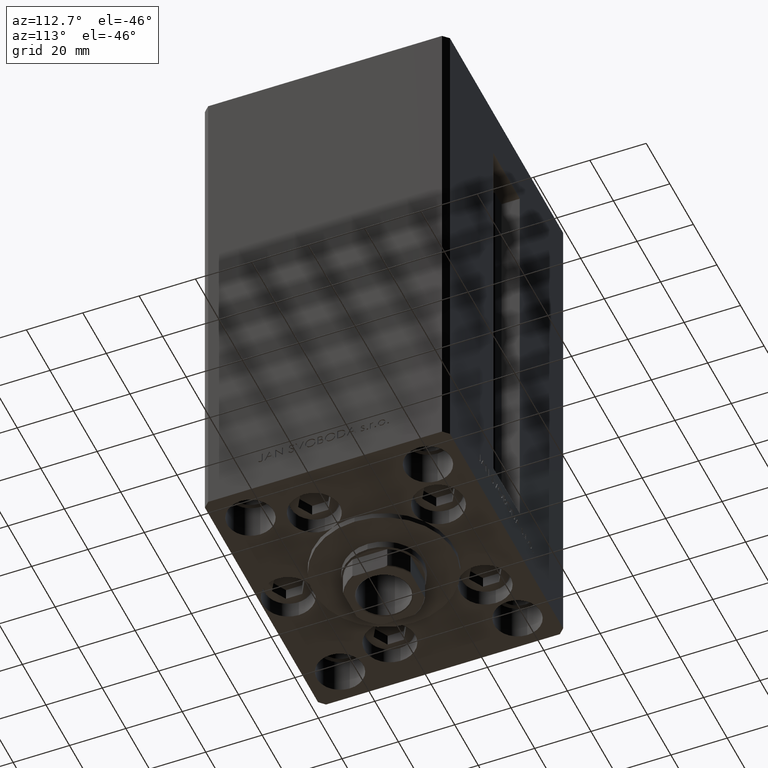
[diagram: clean part render]
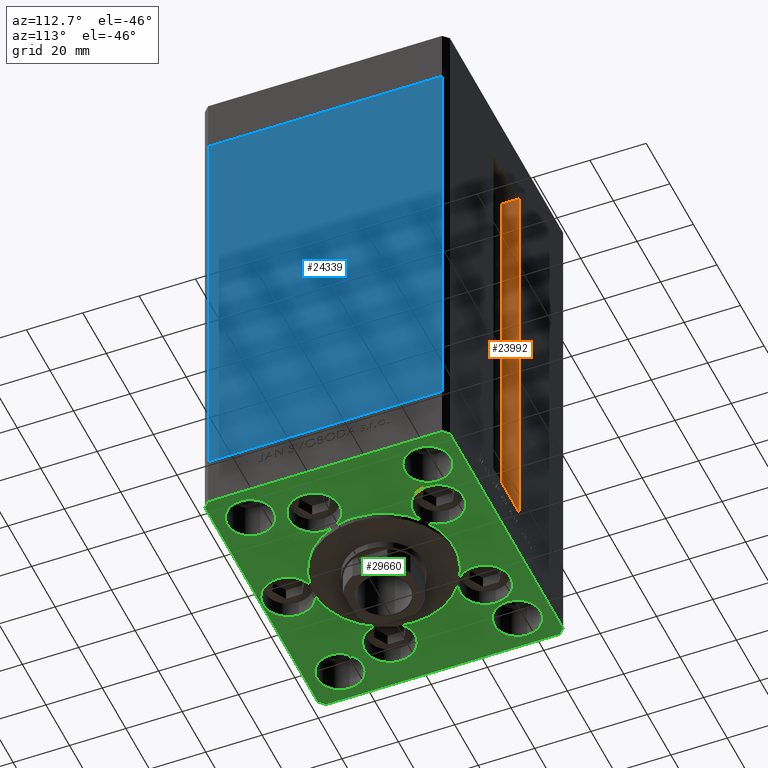
[diagram: same view with three faces highlighted in distinct colors, each labeled with its STEP entity id]
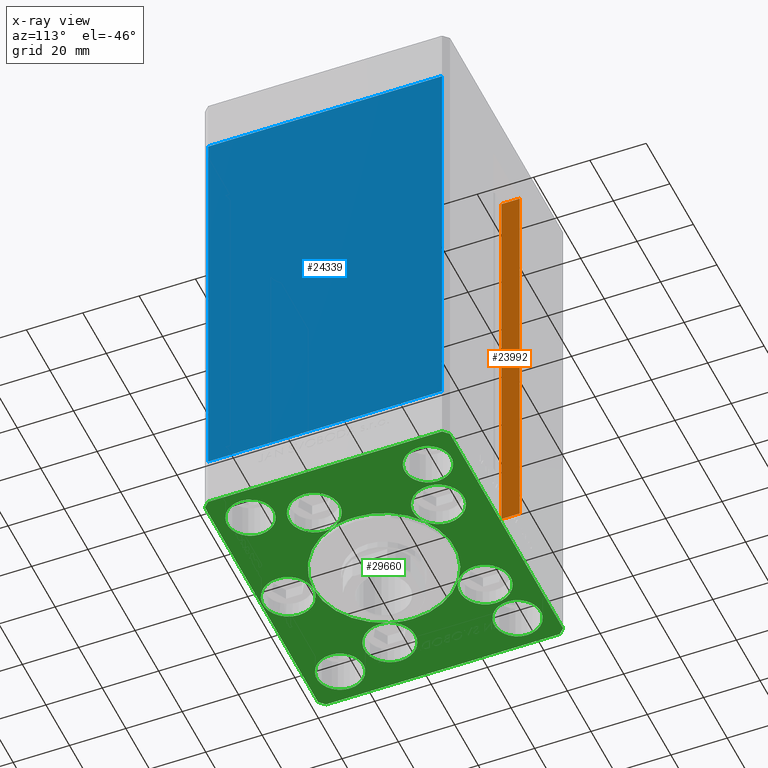
[diagram: x-ray of the same camera — body ghosted, the three highlighted faces saturated]
A machine part, auxiliary view with three faces highlighted in distinct colors.
The next image is the same camera in x-ray (body ghosted, the three faces saturated) — at least one of them is partly hidden behind the body in this view.
Their STEP definitions:

[orange] entity #23992 — the highlighted planar face has unit normal (-1, 0, 0).
#4815 = CARTESIAN_POINT ( 'NONE',  ( -11.24999999999999822, 0.000000000000000000, 148.5000000000000000 ) ) ;
#6419 = EDGE_CURVE ( 'NONE', #46336, #21211, #12008, .T. ) ;
#7380 = CARTESIAN_POINT ( 'NONE',  ( -11.24999999999999822, 36.99999999999999289, 0.000000000000000000 ) ) ;
#10275 = ORIENTED_EDGE ( 'NONE', *, *, #6419, .T. ) ;
#10928 = DIRECTION ( 'NONE',  ( -0.000000000000000000, -0.000000000000000000, 1.000000000000000000 ) ) ;
#11407 = DIRECTION ( 'NONE',  ( 0.000000000000000000, 1.000000000000000000, 0.000000000000000000 ) ) ;
#11491 = CARTESIAN_POINT ( 'NONE',  ( -11.24999999999999822, 43.50000000000000000, 0.000000000000000000 ) ) ;
#11684 = ORIENTED_EDGE ( 'NONE', *, *, #32358, .F. ) ;
#11868 = VECTOR ( 'NONE', #10928, 1000.000000000000000 ) ;
#12008 = LINE ( 'NONE', #11491, #12342 ) ;
#12342 = VECTOR ( 'NONE', #39161, 1000.000000000000000 ) ;
#14443 = CARTESIAN_POINT ( 'NONE',  ( -11.24999999999999822, 43.50000000000000000, 148.5000000000000000 ) ) ;
#15360 = VERTEX_POINT ( 'NONE', #33729 ) ;
#15728 = AXIS2_PLACEMENT_3D ( 'NONE', #16169, #27582, #42818 ) ;
#16169 = CARTESIAN_POINT ( 'NONE',  ( -11.24999999999999822, 36.99999999999999289, 0.000000000000000000 ) ) ;
#21211 = VERTEX_POINT ( 'NONE', #14443 ) ;
#22326 = ORIENTED_EDGE ( 'NONE', *, *, #27423, .F. ) ;
#23380 = LINE ( 'NONE', #7380, #11868 ) ;
#23992 = ADVANCED_FACE ( 'NONE', ( #27078 ), #39514, .F. ) ;
#24103 = LINE ( 'NONE', #4815, #28831 ) ;
#27078 = FACE_OUTER_BOUND ( 'NONE', #41637, .T. ) ;
#27423 = EDGE_CURVE ( 'NONE', #15360, #21211, #24103, .T. ) ;
#27582 = DIRECTION ( 'NONE',  ( -1.000000000000000000, 0.000000000000000000, 0.000000000000000000 ) ) ;
#28831 = VECTOR ( 'NONE', #11407, 1000.000000000000000 ) ;
#29767 = VECTOR ( 'NONE', #32600, 1000.000000000000000 ) ;
#32358 = EDGE_CURVE ( 'NONE', #46336, #34397, #44540, .T. ) ;
#32600 = DIRECTION ( 'NONE',  ( -0.000000000000000000, -1.000000000000000000, -0.000000000000000000 ) ) ;
#33473 = EDGE_CURVE ( 'NONE', #34397, #15360, #23380, .T. ) ;
#33729 = CARTESIAN_POINT ( 'NONE',  ( -11.24999999999999822, 36.99999999999999289, 148.5000000000000000 ) ) ;
#34397 = VERTEX_POINT ( 'NONE', #39167 ) ;
#37164 = CARTESIAN_POINT ( 'NONE',  ( -11.24999999999999822, 36.99999999999999289, 0.000000000000000000 ) ) ;
#39161 = DIRECTION ( 'NONE',  ( -0.000000000000000000, -0.000000000000000000, 1.000000000000000000 ) ) ;
#39167 = CARTESIAN_POINT ( 'NONE',  ( -11.24999999999999822, 36.99999999999999289, 0.000000000000000000 ) ) ;
#39514 = PLANE ( 'NONE',  #15728 ) ;
#40799 = CARTESIAN_POINT ( 'NONE',  ( -11.24999999999999822, 43.50000000000000000, 0.000000000000000000 ) ) ;
#41637 = EDGE_LOOP ( 'NONE', ( #48387, #11684, #10275, #22326 ) ) ;
#42818 = DIRECTION ( 'NONE',  ( 0.000000000000000000, 0.000000000000000000, 1.000000000000000000 ) ) ;
#44540 = LINE ( 'NONE', #37164, #29767 ) ;
#46336 = VERTEX_POINT ( 'NONE', #40799 ) ;
#48387 = ORIENTED_EDGE ( 'NONE', *, *, #33473, .F. ) ;

[blue] entity #24339 — the highlighted planar face has unit normal (1, -0, 0).
#1962 = CARTESIAN_POINT ( 'NONE',  ( 50.00000000000001421, 41.49999999999999289, 148.5000000000000000 ) ) ;
#2101 = DIRECTION ( 'NONE',  ( -0.000000000000000000, -0.000000000000000000, -1.000000000000000000 ) ) ;
#2780 = VERTEX_POINT ( 'NONE', #5425 ) ;
#3929 = EDGE_CURVE ( 'NONE', #2780, #25848, #47812, .T. ) ;
#5364 = CARTESIAN_POINT ( 'NONE',  ( 49.99999999999998579, -41.49999999999999289, 148.5000000000000000 ) ) ;
#5425 = CARTESIAN_POINT ( 'NONE',  ( 50.00000000000001421, 41.49999999999999289, 148.5000000000000000 ) ) ;
#5853 = CARTESIAN_POINT ( 'NONE',  ( 49.99999999999998579, -41.49999999999999289, 148.5000000000000000 ) ) ;
#9445 = VERTEX_POINT ( 'NONE', #29307 ) ;
#9734 = CARTESIAN_POINT ( 'NONE',  ( 50.00000000000001421, 41.49999999999999289, 148.5000000000000000 ) ) ;
#10090 = DIRECTION ( 'NONE',  ( -3.344045254895050973E-16, -1.000000000000000000, 0.000000000000000000 ) ) ;
#13072 = VECTOR ( 'NONE', #2101, 1000.000000000000000 ) ;
#13244 = ORIENTED_EDGE ( 'NONE', *, *, #3929, .F. ) ;
#14581 = CARTESIAN_POINT ( 'NONE',  ( 50.00000000000001421, 41.49999999999999289, 0.000000000000000000 ) ) ;
#15157 = VECTOR ( 'NONE', #20588, 1000.000000000000000 ) ;
#18965 = LINE ( 'NONE', #34437, #43956 ) ;
#20316 = EDGE_CURVE ( 'NONE', #25848, #9445, #18965, .T. ) ;
#20588 = DIRECTION ( 'NONE',  ( -0.000000000000000000, -0.000000000000000000, -1.000000000000000000 ) ) ;
#20930 = PLANE ( 'NONE',  #38383 ) ;
#22726 = EDGE_LOOP ( 'NONE', ( #39014, #13244, #42817, #47010 ) ) ;
#24339 = ADVANCED_FACE ( 'NONE', ( #25223 ), #20930, .T. ) ;
#24395 = LINE ( 'NONE', #5364, #15157 ) ;
#25223 = FACE_OUTER_BOUND ( 'NONE', #22726, .T. ) ;
#25848 = VERTEX_POINT ( 'NONE', #14581 ) ;
#28276 = DIRECTION ( 'NONE',  ( 3.344045254895050480E-16, 1.000000000000000000, 0.000000000000000000 ) ) ;
#29307 = CARTESIAN_POINT ( 'NONE',  ( 49.99999999999998579, -41.49999999999999289, 0.000000000000000000 ) ) ;
#34437 = CARTESIAN_POINT ( 'NONE',  ( 50.00000000000001421, 41.49999999999999289, 0.000000000000000000 ) ) ;
#34805 = EDGE_CURVE ( 'NONE', #2780, #46030, #45114, .T. ) ;
#35677 = EDGE_CURVE ( 'NONE', #46030, #9445, #24395, .T. ) ;
#36216 = VECTOR ( 'NONE', #10090, 1000.000000000000000 ) ;
#36391 = CARTESIAN_POINT ( 'NONE',  ( 50.00000000000001421, 41.49999999999999289, 148.5000000000000000 ) ) ;
#38383 = AXIS2_PLACEMENT_3D ( 'NONE', #36391, #40695, #28276 ) ;
#39014 = ORIENTED_EDGE ( 'NONE', *, *, #20316, .F. ) ;
#40695 = DIRECTION ( 'NONE',  ( 1.000000000000000000, -3.344045254895050480E-16, 0.000000000000000000 ) ) ;
#42817 = ORIENTED_EDGE ( 'NONE', *, *, #34805, .T. ) ;
#43956 = VECTOR ( 'NONE', #45393, 1000.000000000000000 ) ;
#45114 = LINE ( 'NONE', #1962, #36216 ) ;
#45393 = DIRECTION ( 'NONE',  ( -3.344045254895050973E-16, -1.000000000000000000, 0.000000000000000000 ) ) ;
#46030 = VERTEX_POINT ( 'NONE', #5853 ) ;
#47010 = ORIENTED_EDGE ( 'NONE', *, *, #35677, .T. ) ;
#47812 = LINE ( 'NONE', #9734, #13072 ) ;

[green] entity #29660 — the highlighted planar face has unit normal (0, 0, -1).
#75 = CIRCLE ( 'NONE', #30078, 9.000000000000001776 ) ;
#535 = AXIS2_PLACEMENT_3D ( 'NONE', #1904, #47616, #17399 ) ;
#575 = ORIENTED_EDGE ( 'NONE', *, *, #30918, .F. ) ;
#836 = DIRECTION ( 'NONE',  ( 1.000000000000000000, 0.000000000000000000, 0.000000000000000000 ) ) ;
#987 = CARTESIAN_POINT ( 'NONE',  ( -48.00000000000000711, -43.50000000000002842, 0.000000000000000000 ) ) ;
#1056 = VERTEX_POINT ( 'NONE', #19227 ) ;
#1154 = ORIENTED_EDGE ( 'NONE', *, *, #32455, .T. ) ;
#1718 = DIRECTION ( 'NONE',  ( 0.000000000000000000, 0.000000000000000000, 1.000000000000000000 ) ) ;
#1904 = CARTESIAN_POINT ( 'NONE',  ( 0.000000000000000000, 0.000000000000000000, 0.000000000000000000 ) ) ;
#2154 = ORIENTED_EDGE ( 'NONE', *, *, #38752, .F. ) ;
#2157 = CARTESIAN_POINT ( 'NONE',  ( 50.00000000000000000, 41.50000000000000711, 0.000000000000000000 ) ) ;
#2355 = CARTESIAN_POINT ( 'NONE',  ( -50.00000000000000000, -41.50000000000004263, 0.000000000000000000 ) ) ;
#2511 = VERTEX_POINT ( 'NONE', #48232 ) ;
#2579 = AXIS2_PLACEMENT_3D ( 'NONE', #42724, #7713, #836 ) ;
#2601 = CARTESIAN_POINT ( 'NONE',  ( -50.00000000000000711, 41.49999999999999289, 0.000000000000000000 ) ) ;
#2864 = VERTEX_POINT ( 'NONE', #16341 ) ;
#3476 = VERTEX_POINT ( 'NONE', #25834 ) ;
#3575 = DIRECTION ( 'NONE',  ( 0.7071067811865487940, -0.7071067811865463515, 0.000000000000000000 ) ) ;
#3583 = DIRECTION ( 'NONE',  ( 0.000000000000000000, 0.000000000000000000, 1.000000000000000000 ) ) ;
#3749 = VECTOR ( 'NONE', #33130, 999.9999999999998863 ) ;
#3804 = EDGE_CURVE ( 'NONE', #14746, #22175, #75, .T. ) ;
#3847 = DIRECTION ( 'NONE',  ( 1.000000000000000000, 0.000000000000000000, 0.000000000000000000 ) ) ;
#3911 = CARTESIAN_POINT ( 'NONE',  ( 32.05550741379015989, -11.33333333333332860, 0.000000000000000000 ) ) ;
#3977 = DIRECTION ( 'NONE',  ( 1.000000000000000000, 0.000000000000000000, 0.000000000000000000 ) ) ;
#4087 = LINE ( 'NONE', #38348, #8470 ) ;
#4153 = DIRECTION ( 'NONE',  ( 1.000000000000000000, 0.000000000000000000, 0.000000000000000000 ) ) ;
#4366 = CIRCLE ( 'NONE', #28672, 8.250000000000000000 ) ;
#4677 = CIRCLE ( 'NONE', #12746, 9.000000000000001776 ) ;
#4760 = CARTESIAN_POINT ( 'NONE',  ( -29.75000000000000000, 31.50000000000000000, 0.000000000000000000 ) ) ;
#4929 = LINE ( 'NONE', #37800, #43242 ) ;
#5018 = CARTESIAN_POINT ( 'NONE',  ( -25.00000000000000000, -6.938893903907228378E-15, 0.000000000000000000 ) ) ;
#5252 = CIRCLE ( 'NONE', #6869, 25.00000000000000000 ) ;
#5396 = VERTEX_POINT ( 'NONE', #33264 ) ;
#5492 = PLANE ( 'NONE',  #535 ) ;
#5584 = AXIS2_PLACEMENT_3D ( 'NONE', #9567, #12619, #20235 ) ;
#5599 = DIRECTION ( 'NONE',  ( 1.000000000000000000, 0.000000000000000000, 0.000000000000000000 ) ) ;
#5743 = FACE_BOUND ( 'NONE', #38206, .T. ) ;
#5870 = DIRECTION ( 'NONE',  ( 1.000000000000000000, 0.000000000000000000, 0.000000000000000000 ) ) ;
#5912 = ORIENTED_EDGE ( 'NONE', *, *, #7919, .F. ) ;
#6386 = AXIS2_PLACEMENT_3D ( 'NONE', #31218, #46701, #35522 ) ;
#6537 = ORIENTED_EDGE ( 'NONE', *, *, #19209, .F. ) ;
#6553 = DIRECTION ( 'NONE',  ( 8.360113137237620037E-17, -1.000000000000000000, 0.000000000000000000 ) ) ;
#6559 = AXIS2_PLACEMENT_3D ( 'NONE', #10981, #26216, #30772 ) ;
#6702 = ORIENTED_EDGE ( 'NONE', *, *, #40043, .F. ) ;
#6709 = LINE ( 'NONE', #37899, #40322 ) ;
#6833 = CIRCLE ( 'NONE', #30323, 8.999999999999998224 ) ;
#6869 = AXIS2_PLACEMENT_3D ( 'NONE', #50108, #16029, #5870 ) ;
#6964 = CARTESIAN_POINT ( 'NONE',  ( 0.000000000000000000, -34.00000000000000000, 0.000000000000000000 ) ) ;
#7039 = CARTESIAN_POINT ( 'NONE',  ( -32.05550741379015989, -11.33333333333332860, 0.000000000000000000 ) ) ;
#7288 = LINE ( 'NONE', #21787, #46837 ) ;
#7672 = CARTESIAN_POINT ( 'NONE',  ( 38.00000000000000711, -31.50000000000000711, 0.000000000000000000 ) ) ;
#7673 = CARTESIAN_POINT ( 'NONE',  ( 29.75000000000001066, -31.50000000000000711, 0.000000000000000000 ) ) ;
#7691 = DIRECTION ( 'NONE',  ( 0.000000000000000000, 0.000000000000000000, 1.000000000000000000 ) ) ;
#7713 = DIRECTION ( 'NONE',  ( 0.000000000000000000, 0.000000000000000000, 1.000000000000000000 ) ) ;
#7715 = DIRECTION ( 'NONE',  ( 0.000000000000000000, 0.000000000000000000, 1.000000000000000000 ) ) ;
#7746 = AXIS2_PLACEMENT_3D ( 'NONE', #11852, #46631, #27834 ) ;
#7831 = CARTESIAN_POINT ( 'NONE',  ( 0.000000000000000000, -34.00000000000000000, 0.000000000000000000 ) ) ;
#7899 = AXIS2_PLACEMENT_3D ( 'NONE', #6964, #7715, #34341 ) ;
#7919 = EDGE_CURVE ( 'NONE', #20678, #37092, #28573, .T. ) ;
#8210 = CARTESIAN_POINT ( 'NONE',  ( 0.000000000000000000, -6.938893903907228378E-15, 0.000000000000000000 ) ) ;
#8341 = VERTEX_POINT ( 'NONE', #28860 ) ;
#8470 = VECTOR ( 'NONE', #3575, 1000.000000000000000 ) ;
#8580 = DIRECTION ( 'NONE',  ( 0.000000000000000000, 0.000000000000000000, 1.000000000000000000 ) ) ;
#8616 = CARTESIAN_POINT ( 'NONE',  ( -48.00000000000000000, 43.49999999999997158, 0.000000000000000000 ) ) ;
#8671 = CIRCLE ( 'NONE', #37016, 25.00000000000000000 ) ;
#8682 = CARTESIAN_POINT ( 'NONE',  ( 9.000000000000000000, -34.00000000000000000, 0.000000000000000000 ) ) ;
#8940 = VERTEX_POINT ( 'NONE', #39049 ) ;
#9442 = EDGE_CURVE ( 'NONE', #25993, #19058, #22839, .T. ) ;
#9510 = CARTESIAN_POINT ( 'NONE',  ( 28.82068048781374969, 27.62499999999998934, 0.000000000000000000 ) ) ;
#9531 = AXIS2_PLACEMENT_3D ( 'NONE', #7831, #26847, #27104 ) ;
#9567 = CARTESIAN_POINT ( 'NONE',  ( -38.00000000000000711, -31.50000000000000711, 0.000000000000000000 ) ) ;
#9665 = EDGE_CURVE ( 'NONE', #8341, #16570, #44737, .T. ) ;
#9685 = ORIENTED_EDGE ( 'NONE', *, *, #12882, .T. ) ;
#9778 = CARTESIAN_POINT ( 'NONE',  ( 38.00000000000000000, 31.50000000000000000, 0.000000000000000000 ) ) ;
#10596 = CIRCLE ( 'NONE', #6559, 8.999999999999998224 ) ;
#10731 = AXIS2_PLACEMENT_3D ( 'NONE', #26985, #11768, #4153 ) ;
#10751 = ORIENTED_EDGE ( 'NONE', *, *, #34547, .F. ) ;
#10981 = CARTESIAN_POINT ( 'NONE',  ( 19.82068048781374969, 27.62499999999998934, 0.000000000000000000 ) ) ;
#10990 = DIRECTION ( 'NONE',  ( 0.7071067811865474617, 0.7071067811865474617, 0.000000000000000000 ) ) ;
#11024 = DIRECTION ( 'NONE',  ( 1.000000000000000000, 0.000000000000000000, 0.000000000000000000 ) ) ;
#11099 = ORIENTED_EDGE ( 'NONE', *, *, #34727, .F. ) ;
#11147 = CARTESIAN_POINT ( 'NONE',  ( -9.000000000000000000, -34.00000000000000000, 0.000000000000000000 ) ) ;
#11471 = DIRECTION ( 'NONE',  ( 0.000000000000000000, 0.000000000000000000, 1.000000000000000000 ) ) ;
#11643 = CIRCLE ( 'NONE', #31093, 25.00000000000000000 ) ;
#11768 = DIRECTION ( 'NONE',  ( 0.000000000000000000, 0.000000000000000000, 1.000000000000000000 ) ) ;
#11778 = DIRECTION ( 'NONE',  ( 0.000000000000000000, 0.000000000000000000, 1.000000000000000000 ) ) ;
#11804 = CARTESIAN_POINT ( 'NONE',  ( -14.57402977045128978, 20.31249999999999289, 0.000000000000000000 ) ) ;
#11852 = CARTESIAN_POINT ( 'NONE',  ( 19.82068048781374969, 27.62499999999998934, 0.000000000000000000 ) ) ;
#11853 = ORIENTED_EDGE ( 'NONE', *, *, #9442, .F. ) ;
#12147 = CARTESIAN_POINT ( 'NONE',  ( 0.000000000000000000, -6.938893903907228378E-15, 0.000000000000000000 ) ) ;
#12377 = DIRECTION ( 'NONE',  ( 1.000000000000000000, 0.000000000000000000, 0.000000000000000000 ) ) ;
#12398 = DIRECTION ( 'NONE',  ( 1.000000000000000000, 0.000000000000000000, 0.000000000000000000 ) ) ;
#12428 = VERTEX_POINT ( 'NONE', #30619 ) ;
#12480 = DIRECTION ( 'NONE',  ( 0.000000000000000000, 0.000000000000000000, 1.000000000000000000 ) ) ;
#12619 = DIRECTION ( 'NONE',  ( 0.000000000000000000, 0.000000000000000000, 1.000000000000000000 ) ) ;
#12641 = ORIENTED_EDGE ( 'NONE', *, *, #15089, .T. ) ;
#12679 = CIRCLE ( 'NONE', #41049, 9.000000000000001776 ) ;
#12718 = CIRCLE ( 'NONE', #19183, 8.250000000000000000 ) ;
#12743 = VECTOR ( 'NONE', #47738, 1000.000000000000000 ) ;
#12746 = AXIS2_PLACEMENT_3D ( 'NONE', #40035, #8580, #12377 ) ;
#12882 = EDGE_CURVE ( 'NONE', #34996, #19963, #4929, .T. ) ;
#13059 = VERTEX_POINT ( 'NONE', #8616 ) ;
#13429 = LINE ( 'NONE', #987, #28144 ) ;
#13678 = EDGE_CURVE ( 'NONE', #3476, #2511, #11643, .T. ) ;
#13838 = DIRECTION ( 'NONE',  ( 1.000000000000000000, 0.000000000000000000, 0.000000000000000000 ) ) ;
#13865 = ORIENTED_EDGE ( 'NONE', *, *, #37674, .F. ) ;
#14414 = EDGE_CURVE ( 'NONE', #39040, #21359, #4366, .T. ) ;
#14709 = DIRECTION ( 'NONE',  ( 0.000000000000000000, 1.000000000000000000, 0.000000000000000000 ) ) ;
#14746 = VERTEX_POINT ( 'NONE', #22933 ) ;
#14748 = CARTESIAN_POINT ( 'NONE',  ( -38.00000000000000000, 31.50000000000000000, 0.000000000000000000 ) ) ;
#15026 = EDGE_CURVE ( 'NONE', #26944, #2511, #6833, .T. ) ;
#15043 = CARTESIAN_POINT ( 'NONE',  ( 46.25000000000000000, -31.50000000000000711, 0.000000000000000000 ) ) ;
#15089 = EDGE_CURVE ( 'NONE', #18042, #1056, #4087, .T. ) ;
#15780 = AXIS2_PLACEMENT_3D ( 'NONE', #39308, #1718, #12398 ) ;
#15791 = EDGE_CURVE ( 'NONE', #12428, #5396, #37647, .T. ) ;
#16029 = DIRECTION ( 'NONE',  ( 0.000000000000000000, 0.000000000000000000, 1.000000000000000000 ) ) ;
#16099 = DIRECTION ( 'NONE',  ( 1.000000000000000000, 0.000000000000000000, 0.000000000000000000 ) ) ;
#16222 = CARTESIAN_POINT ( 'NONE',  ( -23.05550741379015633, -11.33333333333332860, 0.000000000000000000 ) ) ;
#16238 = EDGE_CURVE ( 'NONE', #2511, #20678, #5252, .T. ) ;
#16264 = DIRECTION ( 'NONE',  ( 0.000000000000000000, 0.000000000000000000, 1.000000000000000000 ) ) ;
#16341 = CARTESIAN_POINT ( 'NONE',  ( 48.00000000000000711, -43.49999999999992184, 0.000000000000000000 ) ) ;
#16524 = CARTESIAN_POINT ( 'NONE',  ( -48.00000000000000000, 43.49999999999997158, 0.000000000000000000 ) ) ;
#16570 = VERTEX_POINT ( 'NONE', #16222 ) ;
#16628 = VERTEX_POINT ( 'NONE', #46331 ) ;
#16669 = CIRCLE ( 'NONE', #7746, 8.999999999999998224 ) ;
#16946 = CARTESIAN_POINT ( 'NONE',  ( 47.99999999999999289, 43.50000000000000000, 0.000000000000000000 ) ) ;
#17399 = DIRECTION ( 'NONE',  ( 1.000000000000000000, 0.000000000000000000, 0.000000000000000000 ) ) ;
#17562 = CIRCLE ( 'NONE', #20839, 25.00000000000000000 ) ;
#17930 = DIRECTION ( 'NONE',  ( 0.000000000000000000, 0.000000000000000000, 1.000000000000000000 ) ) ;
#18042 = VERTEX_POINT ( 'NONE', #2355 ) ;
#18143 = EDGE_CURVE ( 'NONE', #22175, #29215, #35297, .T. ) ;
#18304 = DIRECTION ( 'NONE',  ( 1.000000000000000000, 0.000000000000000000, 0.000000000000000000 ) ) ;
#18495 = AXIS2_PLACEMENT_3D ( 'NONE', #23275, #30880, #3977 ) ;
#18804 = AXIS2_PLACEMENT_3D ( 'NONE', #9778, #25260, #13838 ) ;
#18944 = DIRECTION ( 'NONE',  ( 0.000000000000000000, 0.000000000000000000, 1.000000000000000000 ) ) ;
#19058 = VERTEX_POINT ( 'NONE', #34807 ) ;
#19093 = ORIENTED_EDGE ( 'NONE', *, *, #15026, .F. ) ;
#19183 = AXIS2_PLACEMENT_3D ( 'NONE', #40772, #29846, #37214 ) ;
#19209 = EDGE_CURVE ( 'NONE', #25494, #21983, #41940, .T. ) ;
#19227 = CARTESIAN_POINT ( 'NONE',  ( -48.00000000000000711, -43.50000000000002842, 0.000000000000000000 ) ) ;
#19346 = DIRECTION ( 'NONE',  ( 1.000000000000000000, 0.000000000000000000, 0.000000000000000000 ) ) ;
#19363 = AXIS2_PLACEMENT_3D ( 'NONE', #45583, #17930, #45830 ) ;
#19445 = EDGE_CURVE ( 'NONE', #1056, #2864, #13429, .T. ) ;
#19904 = AXIS2_PLACEMENT_3D ( 'NONE', #46492, #12480, #20095 ) ;
#19963 = VERTEX_POINT ( 'NONE', #36644 ) ;
#19978 = ORIENTED_EDGE ( 'NONE', *, *, #32706, .F. ) ;
#20095 = DIRECTION ( 'NONE',  ( 1.000000000000000000, 0.000000000000000000, 0.000000000000000000 ) ) ;
#20168 = CIRCLE ( 'NONE', #5584, 8.250000000000000000 ) ;
#20235 = DIRECTION ( 'NONE',  ( 1.000000000000000000, 0.000000000000000000, 0.000000000000000000 ) ) ;
#20250 = LINE ( 'NONE', #16946, #49543 ) ;
#20263 = DIRECTION ( 'NONE',  ( 1.000000000000000000, 0.000000000000000000, 0.000000000000000000 ) ) ;
#20678 = VERTEX_POINT ( 'NONE', #11804 ) ;
#20706 = CARTESIAN_POINT ( 'NONE',  ( 50.00000000000000000, -41.49999999999992895, 0.000000000000000000 ) ) ;
#20839 = AXIS2_PLACEMENT_3D ( 'NONE', #12147, #28624, #20263 ) ;
#21359 = VERTEX_POINT ( 'NONE', #29421 ) ;
#21756 = ORIENTED_EDGE ( 'NONE', *, *, #50186, .F. ) ;
#21787 = CARTESIAN_POINT ( 'NONE',  ( -50.00000000000000711, 41.49999999999999289, 0.000000000000000000 ) ) ;
#21897 = DIRECTION ( 'NONE',  ( 1.000000000000000000, 0.000000000000000000, 0.000000000000000000 ) ) ;
#21907 = CARTESIAN_POINT ( 'NONE',  ( 10.82068048781375147, 27.62499999999998934, 0.000000000000000000 ) ) ;
#21983 = VERTEX_POINT ( 'NONE', #38857 ) ;
#22175 = VERTEX_POINT ( 'NONE', #33236 ) ;
#22263 = ORIENTED_EDGE ( 'NONE', *, *, #31506, .F. ) ;
#22839 = CIRCLE ( 'NONE', #18804, 8.250000000000000000 ) ;
#22933 = CARTESIAN_POINT ( 'NONE',  ( 41.05550741379015989, -11.33333333333332860, 0.000000000000000000 ) ) ;
#23275 = CARTESIAN_POINT ( 'NONE',  ( 38.00000000000000711, -31.50000000000000711, 0.000000000000000000 ) ) ;
#23517 = ORIENTED_EDGE ( 'NONE', *, *, #14414, .F. ) ;
#23682 = DIRECTION ( 'NONE',  ( 0.000000000000000000, 0.000000000000000000, 1.000000000000000000 ) ) ;
#24168 = CIRCLE ( 'NONE', #46876, 8.249999999999992895 ) ;
#24238 = DIRECTION ( 'NONE',  ( 1.000000000000000000, 0.000000000000000000, 0.000000000000000000 ) ) ;
#24488 = ORIENTED_EDGE ( 'NONE', *, *, #19445, .T. ) ;
#24566 = DIRECTION ( 'NONE',  ( -1.000000000000000000, -2.891205793294678326E-16, 0.000000000000000000 ) ) ;
#24741 = CARTESIAN_POINT ( 'NONE',  ( -19.82068048781374969, 27.62499999999998934, 0.000000000000000000 ) ) ;
#25260 = DIRECTION ( 'NONE',  ( 0.000000000000000000, 0.000000000000000000, 1.000000000000000000 ) ) ;
#25494 = VERTEX_POINT ( 'NONE', #32251 ) ;
#25834 = CARTESIAN_POINT ( 'NONE',  ( 25.00000000000000000, -3.877276906038844941E-15, 0.000000000000000000 ) ) ;
#25993 = VERTEX_POINT ( 'NONE', #36876 ) ;
#26216 = DIRECTION ( 'NONE',  ( 0.000000000000000000, 0.000000000000000000, 1.000000000000000000 ) ) ;
#26278 = VERTEX_POINT ( 'NONE', #11147 ) ;
#26847 = DIRECTION ( 'NONE',  ( 0.000000000000000000, 0.000000000000000000, 1.000000000000000000 ) ) ;
#26944 = VERTEX_POINT ( 'NONE', #21907 ) ;
#26985 = CARTESIAN_POINT ( 'NONE',  ( -19.82068048781374969, 27.62499999999998934, 0.000000000000000000 ) ) ;
#27096 = VERTEX_POINT ( 'NONE', #8682 ) ;
#27104 = DIRECTION ( 'NONE',  ( 1.000000000000000000, 0.000000000000000000, 0.000000000000000000 ) ) ;
#27295 = ORIENTED_EDGE ( 'NONE', *, *, #27654, .F. ) ;
#27404 = ORIENTED_EDGE ( 'NONE', *, *, #44690, .F. ) ;
#27654 = EDGE_CURVE ( 'NONE', #50069, #26944, #16669, .T. ) ;
#27834 = DIRECTION ( 'NONE',  ( 1.000000000000000000, 0.000000000000000000, 0.000000000000000000 ) ) ;
#28144 = VECTOR ( 'NONE', #44392, 1000.000000000000000 ) ;
#28313 = FACE_BOUND ( 'NONE', #49694, .T. ) ;
#28573 = CIRCLE ( 'NONE', #10731, 9.000000000000000000 ) ;
#28624 = DIRECTION ( 'NONE',  ( 0.000000000000000000, 0.000000000000000000, 1.000000000000000000 ) ) ;
#28672 = AXIS2_PLACEMENT_3D ( 'NONE', #35791, #16264, #5599 ) ;
#28860 = CARTESIAN_POINT ( 'NONE',  ( -41.05550741379015989, -11.33333333333332682, 0.000000000000000000 ) ) ;
#29215 = VERTEX_POINT ( 'NONE', #30171 ) ;
#29217 = ORIENTED_EDGE ( 'NONE', *, *, #35216, .F. ) ;
#29421 = CARTESIAN_POINT ( 'NONE',  ( -46.25000000000000000, 31.50000000000000000, 0.000000000000000000 ) ) ;
#29660 = ADVANCED_FACE ( 'NONE', ( #44064, #5743, #32124, #28313, #44560, #36682 ), #5492, .T. ) ;
#29665 = EDGE_CURVE ( 'NONE', #19963, #8940, #40738, .T. ) ;
#29728 = AXIS2_PLACEMENT_3D ( 'NONE', #14748, #45472, #18304 ) ;
#29846 = DIRECTION ( 'NONE',  ( 0.000000000000000000, 0.000000000000000000, 1.000000000000000000 ) ) ;
#30078 = AXIS2_PLACEMENT_3D ( 'NONE', #3911, #11778, #16099 ) ;
#30126 = ORIENTED_EDGE ( 'NONE', *, *, #15791, .F. ) ;
#30171 = CARTESIAN_POINT ( 'NONE',  ( 23.05550741379015633, -11.33333333333332682, 0.000000000000000000 ) ) ;
#30314 = CARTESIAN_POINT ( 'NONE',  ( 0.000000000000000000, -6.938893903907228378E-15, 0.000000000000000000 ) ) ;
#30323 = AXIS2_PLACEMENT_3D ( 'NONE', #30735, #30988, #39113 ) ;
#30442 = EDGE_CURVE ( 'NONE', #12428, #8341, #12679, .T. ) ;
#30573 = CIRCLE ( 'NONE', #41140, 25.00000000000000000 ) ;
#30619 = CARTESIAN_POINT ( 'NONE',  ( -23.57022603955158502, -8.333333333333332149, 0.000000000000000000 ) ) ;
#30735 = CARTESIAN_POINT ( 'NONE',  ( 19.82068048781374969, 27.62499999999998934, 0.000000000000000000 ) ) ;
#30762 = CARTESIAN_POINT ( 'NONE',  ( 0.000000000000000000, -6.938893903907228378E-15, 0.000000000000000000 ) ) ;
#30772 = DIRECTION ( 'NONE',  ( 1.000000000000000000, 0.000000000000000000, 0.000000000000000000 ) ) ;
#30880 = DIRECTION ( 'NONE',  ( 0.000000000000000000, 0.000000000000000000, 1.000000000000000000 ) ) ;
#30918 = EDGE_CURVE ( 'NONE', #20678, #48843, #8671, .T. ) ;
#30988 = DIRECTION ( 'NONE',  ( 0.000000000000000000, 0.000000000000000000, 1.000000000000000000 ) ) ;
#31093 = AXIS2_PLACEMENT_3D ( 'NONE', #30314, #45808, #11024 ) ;
#31218 = CARTESIAN_POINT ( 'NONE',  ( -19.82068048781374969, 27.62499999999998934, 0.000000000000000000 ) ) ;
#31362 = ORIENTED_EDGE ( 'NONE', *, *, #36309, .T. ) ;
#31506 = EDGE_CURVE ( 'NONE', #19058, #25993, #12718, .T. ) ;
#32124 = FACE_BOUND ( 'NONE', #43012, .T. ) ;
#32134 = EDGE_CURVE ( 'NONE', #29215, #14746, #4677, .T. ) ;
#32205 = CIRCLE ( 'NONE', #37868, 25.00000000000000000 ) ;
#32223 = AXIS2_PLACEMENT_3D ( 'NONE', #46013, #7691, #38390 ) ;
#32250 = LINE ( 'NONE', #16524, #12743 ) ;
#32251 = CARTESIAN_POINT ( 'NONE',  ( -46.25000000000000711, -31.50000000000000711, 0.000000000000000000 ) ) ;
#32267 = DIRECTION ( 'NONE',  ( 1.000000000000000000, 0.000000000000000000, 0.000000000000000000 ) ) ;
#32343 = DIRECTION ( 'NONE',  ( 0.000000000000000000, 0.000000000000000000, 1.000000000000000000 ) ) ;
#32455 = EDGE_CURVE ( 'NONE', #2864, #34996, #6709, .T. ) ;
#32706 = EDGE_CURVE ( 'NONE', #5396, #26278, #45186, .T. ) ;
#33007 = CARTESIAN_POINT ( 'NONE',  ( -10.82068048781375147, 27.62499999999998934, 0.000000000000000000 ) ) ;
#33033 = ORIENTED_EDGE ( 'NONE', *, *, #29665, .T. ) ;
#33130 = DIRECTION ( 'NONE',  ( -0.7071067811865512365, 0.7071067811865439090, 0.000000000000000000 ) ) ;
#33236 = CARTESIAN_POINT ( 'NONE',  ( 23.57022603955158502, -8.333333333333332149, 0.000000000000000000 ) ) ;
#33264 = CARTESIAN_POINT ( 'NONE',  ( 0.000000000000000000, -25.00000000000000000, 0.000000000000000000 ) ) ;
#33458 = EDGE_LOOP ( 'NONE', ( #39893, #19093, #27295, #27404, #39526, #11099, #45098, #35765, #33910, #41398, #21756, #29217, #19978, #30126, #6702, #39993, #38901, #45820, #575, #36413, #2154, #5912 ) ) ;
#33910 = ORIENTED_EDGE ( 'NONE', *, *, #18143, .F. ) ;
#34341 = DIRECTION ( 'NONE',  ( 1.000000000000000000, 0.000000000000000000, 0.000000000000000000 ) ) ;
#34547 = EDGE_CURVE ( 'NONE', #21359, #39040, #43509, .T. ) ;
#34558 = CIRCLE ( 'NONE', #7899, 9.000000000000000000 ) ;
#34625 = CIRCLE ( 'NONE', #32223, 9.000000000000000000 ) ;
#34727 = EDGE_CURVE ( 'NONE', #22175, #3476, #17562, .T. ) ;
#34807 = CARTESIAN_POINT ( 'NONE',  ( 46.25000000000000000, 31.50000000000000000, 0.000000000000000000 ) ) ;
#34996 = VERTEX_POINT ( 'NONE', #20706 ) ;
#35216 = EDGE_CURVE ( 'NONE', #26278, #27096, #34558, .T. ) ;
#35297 = CIRCLE ( 'NONE', #19904, 9.000000000000001776 ) ;
#35442 = EDGE_CURVE ( 'NONE', #5396, #22175, #32205, .T. ) ;
#35522 = DIRECTION ( 'NONE',  ( 1.000000000000000000, 0.000000000000000000, 0.000000000000000000 ) ) ;
#35765 = ORIENTED_EDGE ( 'NONE', *, *, #32134, .F. ) ;
#35791 = CARTESIAN_POINT ( 'NONE',  ( -38.00000000000000000, 31.50000000000000000, 0.000000000000000000 ) ) ;
#35920 = EDGE_LOOP ( 'NONE', ( #12641, #24488, #1154, #9685, #33033, #48515, #31362, #39899 ) ) ;
#36309 = EDGE_CURVE ( 'NONE', #13059, #42941, #32250, .T. ) ;
#36413 = ORIENTED_EDGE ( 'NONE', *, *, #39451, .F. ) ;
#36644 = CARTESIAN_POINT ( 'NONE',  ( 50.00000000000000000, 41.50000000000000711, 0.000000000000000000 ) ) ;
#36682 = FACE_OUTER_BOUND ( 'NONE', #35920, .T. ) ;
#36876 = CARTESIAN_POINT ( 'NONE',  ( 29.74999999999999645, 31.50000000000000000, 0.000000000000000000 ) ) ;
#37016 = AXIS2_PLACEMENT_3D ( 'NONE', #30762, #11471, #19346 ) ;
#37092 = VERTEX_POINT ( 'NONE', #33007 ) ;
#37214 = DIRECTION ( 'NONE',  ( 1.000000000000000000, 0.000000000000000000, 0.000000000000000000 ) ) ;
#37508 = EDGE_CURVE ( 'NONE', #42941, #18042, #7288, .T. ) ;
#37647 = CIRCLE ( 'NONE', #15780, 25.00000000000000000 ) ;
#37674 = EDGE_CURVE ( 'NONE', #44763, #43006, #46032, .T. ) ;
#37800 = CARTESIAN_POINT ( 'NONE',  ( 50.00000000000000000, -41.49999999999992895, 0.000000000000000000 ) ) ;
#37868 = AXIS2_PLACEMENT_3D ( 'NONE', #41671, #3583, #21897 ) ;
#37899 = CARTESIAN_POINT ( 'NONE',  ( 48.00000000000000711, -43.49999999999992184, 0.000000000000000000 ) ) ;
#37988 = CIRCLE ( 'NONE', #41217, 9.000000000000000000 ) ;
#38067 = EDGE_CURVE ( 'NONE', #43006, #44763, #24168, .T. ) ;
#38206 = EDGE_LOOP ( 'NONE', ( #22263, #11853 ) ) ;
#38348 = CARTESIAN_POINT ( 'NONE',  ( -50.00000000000000000, -41.50000000000004263, 0.000000000000000000 ) ) ;
#38390 = DIRECTION ( 'NONE',  ( 1.000000000000000000, 0.000000000000000000, 0.000000000000000000 ) ) ;
#38621 = DIRECTION ( 'NONE',  ( 0.000000000000000000, 0.000000000000000000, 1.000000000000000000 ) ) ;
#38752 = EDGE_CURVE ( 'NONE', #37092, #16628, #38754, .T. ) ;
#38754 = CIRCLE ( 'NONE', #6386, 9.000000000000000000 ) ;
#38857 = CARTESIAN_POINT ( 'NONE',  ( -29.75000000000000711, -31.50000000000000711, 0.000000000000000000 ) ) ;
#38901 = ORIENTED_EDGE ( 'NONE', *, *, #30442, .F. ) ;
#39040 = VERTEX_POINT ( 'NONE', #4760 ) ;
#39048 = EDGE_CURVE ( 'NONE', #21983, #25494, #20168, .T. ) ;
#39049 = CARTESIAN_POINT ( 'NONE',  ( 47.99999999999999289, 43.50000000000000000, 0.000000000000000000 ) ) ;
#39113 = DIRECTION ( 'NONE',  ( 1.000000000000000000, 0.000000000000000000, 0.000000000000000000 ) ) ;
#39135 = DIRECTION ( 'NONE',  ( 0.000000000000000000, 0.000000000000000000, 1.000000000000000000 ) ) ;
#39308 = CARTESIAN_POINT ( 'NONE',  ( 0.000000000000000000, -6.938893903907228378E-15, 0.000000000000000000 ) ) ;
#39451 = EDGE_CURVE ( 'NONE', #16628, #20678, #37988, .T. ) ;
#39526 = ORIENTED_EDGE ( 'NONE', *, *, #13678, .F. ) ;
#39893 = ORIENTED_EDGE ( 'NONE', *, *, #16238, .F. ) ;
#39899 = ORIENTED_EDGE ( 'NONE', *, *, #37508, .T. ) ;
#39909 = DIRECTION ( 'NONE',  ( 1.000000000000000000, 0.000000000000000000, 0.000000000000000000 ) ) ;
#39993 = ORIENTED_EDGE ( 'NONE', *, *, #9665, .F. ) ;
#40035 = CARTESIAN_POINT ( 'NONE',  ( 32.05550741379015989, -11.33333333333332860, 0.000000000000000000 ) ) ;
#40043 = EDGE_CURVE ( 'NONE', #16570, #12428, #46107, .T. ) ;
#40322 = VECTOR ( 'NONE', #10990, 1000.000000000000114 ) ;
#40738 = LINE ( 'NONE', #2157, #3749 ) ;
#40772 = CARTESIAN_POINT ( 'NONE',  ( 38.00000000000000000, 31.50000000000000000, 0.000000000000000000 ) ) ;
#41049 = AXIS2_PLACEMENT_3D ( 'NONE', #7039, #18944, #45614 ) ;
#41140 = AXIS2_PLACEMENT_3D ( 'NONE', #8210, #23682, #39909 ) ;
#41217 = AXIS2_PLACEMENT_3D ( 'NONE', #24741, #32343, #24238 ) ;
#41398 = ORIENTED_EDGE ( 'NONE', *, *, #35442, .F. ) ;
#41671 = CARTESIAN_POINT ( 'NONE',  ( 0.000000000000000000, -6.938893903907228378E-15, 0.000000000000000000 ) ) ;
#41811 = ORIENTED_EDGE ( 'NONE', *, *, #38067, .F. ) ;
#41940 = CIRCLE ( 'NONE', #48410, 8.250000000000000000 ) ;
#42724 = CARTESIAN_POINT ( 'NONE',  ( -32.05550741379015989, -11.33333333333332860, 0.000000000000000000 ) ) ;
#42937 = CARTESIAN_POINT ( 'NONE',  ( -38.00000000000000711, -31.50000000000000711, 0.000000000000000000 ) ) ;
#42941 = VERTEX_POINT ( 'NONE', #2601 ) ;
#43006 = VERTEX_POINT ( 'NONE', #7673 ) ;
#43012 = EDGE_LOOP ( 'NONE', ( #23517, #10751 ) ) ;
#43242 = VECTOR ( 'NONE', #14709, 1000.000000000000000 ) ;
#43509 = CIRCLE ( 'NONE', #29728, 8.250000000000000000 ) ;
#43546 = EDGE_LOOP ( 'NONE', ( #13865, #41811 ) ) ;
#44064 = FACE_BOUND ( 'NONE', #33458, .T. ) ;
#44392 = DIRECTION ( 'NONE',  ( 1.000000000000000000, 1.156482317317871331E-15, 0.000000000000000000 ) ) ;
#44560 = FACE_BOUND ( 'NONE', #43546, .T. ) ;
#44690 = EDGE_CURVE ( 'NONE', #2511, #50069, #10596, .T. ) ;
#44737 = CIRCLE ( 'NONE', #2579, 9.000000000000001776 ) ;
#44763 = VERTEX_POINT ( 'NONE', #15043 ) ;
#45098 = ORIENTED_EDGE ( 'NONE', *, *, #3804, .F. ) ;
#45186 = CIRCLE ( 'NONE', #9531, 9.000000000000000000 ) ;
#45417 = EDGE_CURVE ( 'NONE', #8940, #13059, #20250, .T. ) ;
#45472 = DIRECTION ( 'NONE',  ( 0.000000000000000000, 0.000000000000000000, 1.000000000000000000 ) ) ;
#45583 = CARTESIAN_POINT ( 'NONE',  ( -32.05550741379015989, -11.33333333333332860, 0.000000000000000000 ) ) ;
#45604 = ORIENTED_EDGE ( 'NONE', *, *, #39048, .F. ) ;
#45614 = DIRECTION ( 'NONE',  ( 1.000000000000000000, 0.000000000000000000, 0.000000000000000000 ) ) ;
#45808 = DIRECTION ( 'NONE',  ( 0.000000000000000000, 0.000000000000000000, 1.000000000000000000 ) ) ;
#45820 = ORIENTED_EDGE ( 'NONE', *, *, #49308, .F. ) ;
#45830 = DIRECTION ( 'NONE',  ( 1.000000000000000000, 0.000000000000000000, 0.000000000000000000 ) ) ;
#46013 = CARTESIAN_POINT ( 'NONE',  ( 0.000000000000000000, -34.00000000000000000, 0.000000000000000000 ) ) ;
#46032 = CIRCLE ( 'NONE', #18495, 8.249999999999992895 ) ;
#46107 = CIRCLE ( 'NONE', #19363, 9.000000000000001776 ) ;
#46331 = CARTESIAN_POINT ( 'NONE',  ( -28.82068048781374969, 27.62499999999998934, 0.000000000000000000 ) ) ;
#46492 = CARTESIAN_POINT ( 'NONE',  ( 32.05550741379015989, -11.33333333333332860, 0.000000000000000000 ) ) ;
#46631 = DIRECTION ( 'NONE',  ( 0.000000000000000000, 0.000000000000000000, 1.000000000000000000 ) ) ;
#46701 = DIRECTION ( 'NONE',  ( 0.000000000000000000, 0.000000000000000000, 1.000000000000000000 ) ) ;
#46837 = VECTOR ( 'NONE', #6553, 1000.000000000000000 ) ;
#46876 = AXIS2_PLACEMENT_3D ( 'NONE', #7672, #38621, #3847 ) ;
#47616 = DIRECTION ( 'NONE',  ( -0.000000000000000000, 0.000000000000000000, 1.000000000000000000 ) ) ;
#47738 = DIRECTION ( 'NONE',  ( -0.7071067811865536790, -0.7071067811865414665, 0.000000000000000000 ) ) ;
#48232 = CARTESIAN_POINT ( 'NONE',  ( 14.57402977045128623, 20.31249999999998579, 0.000000000000000000 ) ) ;
#48410 = AXIS2_PLACEMENT_3D ( 'NONE', #42937, #39135, #32267 ) ;
#48515 = ORIENTED_EDGE ( 'NONE', *, *, #45417, .T. ) ;
#48843 = VERTEX_POINT ( 'NONE', #5018 ) ;
#49308 = EDGE_CURVE ( 'NONE', #48843, #12428, #30573, .T. ) ;
#49543 = VECTOR ( 'NONE', #24566, 1000.000000000000000 ) ;
#49694 = EDGE_LOOP ( 'NONE', ( #45604, #6537 ) ) ;
#50069 = VERTEX_POINT ( 'NONE', #9510 ) ;
#50108 = CARTESIAN_POINT ( 'NONE',  ( 0.000000000000000000, -6.938893903907228378E-15, 0.000000000000000000 ) ) ;
#50186 = EDGE_CURVE ( 'NONE', #27096, #5396, #34625, .T. ) ;